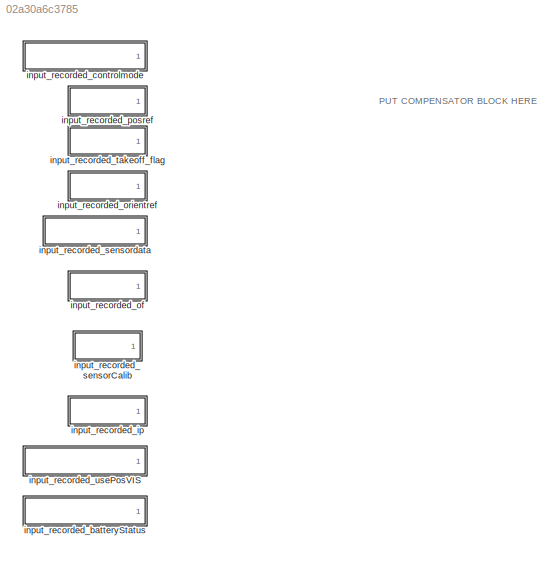
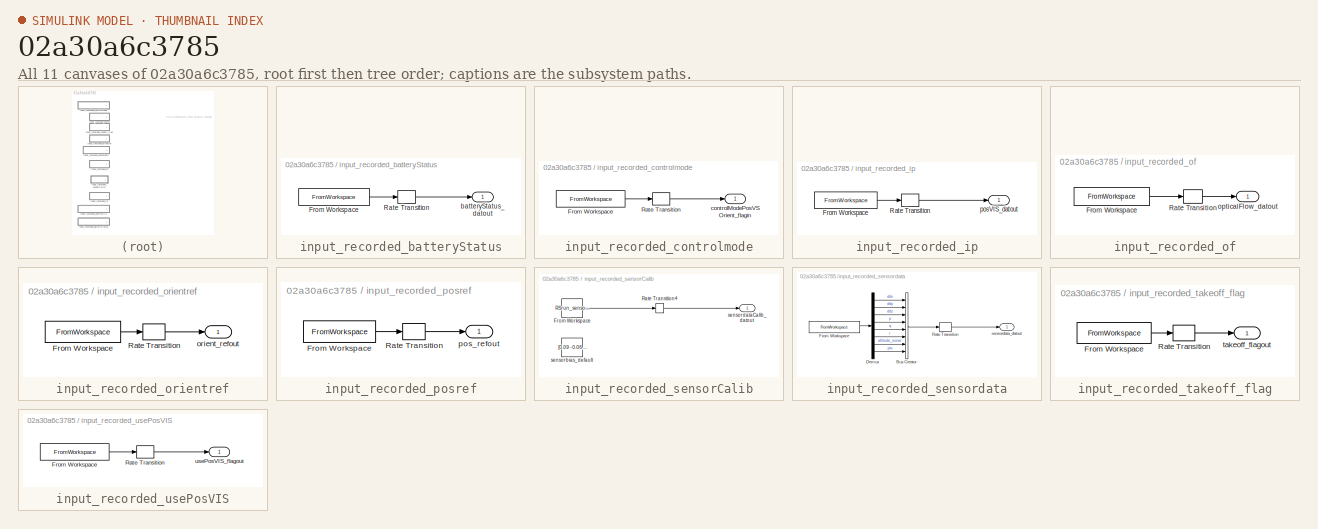
[diagram: thumbnail index - all 11 canvases of the model, root first then tree order]
MODEL slx_02a30a6c3785
KIND model
CONFIG AbsTol = auto
CONFIG FixedStep = 0.005
CONFIG InitFcn = % load parameters of the default quadrotor\ndisp('Quadrotor parameters loaded by InitFcn')\nparameters_estimationcontrol %load mdl_quadcopter as well!\n\n% change to Simulation folder if in data folder\ncd([matlabpath '/Simulation']);
CONFIG MaxStep = auto
CONFIG MinStep = auto
CONFIG RelTol = 1e-3
CONFIG SampleTimeConstraint = Unconstrained
CONFIG Solver = ode3
CONFIG SolverMode = Auto
CONFIG SolverName = ode3
CONFIG StartTime = 0.0
CONFIG StopTime = 15
BLOCK [SubSystem] input_recorded_batteryStatus
  Ports = [0, 1]
  RequestExecContextInheritance = off
BLOCK [FromWorkspace] input_recorded_batteryStatus/From Workspace
  SampleTime = quadEDT.sampletime
  VariableName = RSrun_usePosVIS
  ZeroCross = on
BLOCK [RateTransition] input_recorded_batteryStatus/Rate Transition
  OutPortSampleTime = quadEDT.sampletime
BLOCK [Outport] input_recorded_batteryStatus/batteryStatus_datout
  IconDisplay = Port number
BLOCK [SubSystem] input_recorded_controlmode
  Ports = [0, 1]
  RequestExecContextInheritance = off
BLOCK [FromWorkspace] input_recorded_controlmode/From Workspace
  SampleTime = quadEDT.sampletime
  VariableName = RSrun_controlMode
  ZeroCross = on
BLOCK [RateTransition] input_recorded_controlmode/Rate Transition
  OutPortSampleTime = quadEDT.sampletime
BLOCK [Outport] input_recorded_controlmode/controlModePosVSOrient_flagin
  IconDisplay = Port number
BLOCK [SubSystem] input_recorded_ip
  Ports = [0, 1]
  RequestExecContextInheritance = off
BLOCK [FromWorkspace] input_recorded_ip/From Workspace
  SampleTime = quadEDT.sampletime
  VariableName = RSrun_posVIS
  ZeroCross = on
BLOCK [RateTransition] input_recorded_ip/Rate Transition
  OutPortSampleTime = quadEDT.sampletime
BLOCK [Outport] input_recorded_ip/posVIS_datout
  IconDisplay = Port number
BLOCK [SubSystem] input_recorded_of
  Ports = [0, 1]
  RequestExecContextInheritance = off
BLOCK [FromWorkspace] input_recorded_of/From Workspace
  SampleTime = quadEDT.sampletime
  VariableName = RSrun_opticalFlow
  ZeroCross = on
BLOCK [RateTransition] input_recorded_of/Rate Transition
  OutPortSampleTime = quadEDT.sampletime
BLOCK [Outport] input_recorded_of/opticalFlow_datout
  IconDisplay = Port number
BLOCK [SubSystem] input_recorded_orientref
  Ports = [0, 1]
  RequestExecContextInheritance = off
BLOCK [FromWorkspace] input_recorded_orientref/From Workspace
  SampleTime = quadEDT.sampletime
  VariableName = RSrun_orient_ref
  ZeroCross = on
BLOCK [RateTransition] input_recorded_orientref/Rate Transition
  OutPortSampleTime = quadEDT.sampletime
BLOCK [Outport] input_recorded_orientref/orient_refout
  IconDisplay = Port number
BLOCK [SubSystem] input_recorded_posref
  Ports = [0, 1]
  RequestExecContextInheritance = off
BLOCK [FromWorkspace] input_recorded_posref/From Workspace
  SampleTime = quadEDT.sampletime
  VariableName = RSrun_pos_ref
  ZeroCross = on
BLOCK [RateTransition] input_recorded_posref/Rate Transition
  OutPortSampleTime = quadEDT.sampletime
BLOCK [Outport] input_recorded_posref/pos_refout
  IconDisplay = Port number
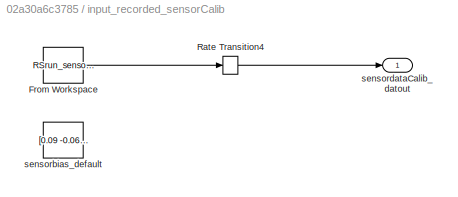
BLOCK [SubSystem] input_recorded_sensorCalib
  Ports = [0, 1]
  RequestExecContextInheritance = off
BLOCK [Constant] input_recorded_sensorCalib/From Workspace
  SampleTime = quadEDT.sampletime
  Value = RSrun_sensordataCalib
BLOCK [RateTransition] input_recorded_sensorCalib/Rate Transition4
  OutPortSampleTime = quadEDT.sampletime
BLOCK [Constant] input_recorded_sensorCalib/sensorbias_default
  SampleTime = quadEDT.sampletime
  Value = [0.09 -0.06 +0.337 -0.0095 -0.0075 0.0015 mean(rt_yout.signals(9).values(1:200))]
BLOCK [Outport] input_recorded_sensorCalib/sensordataCalib_datout
  IconDisplay = Port number
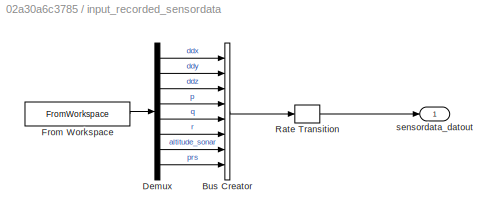
BLOCK [SubSystem] input_recorded_sensordata
  Ports = [0, 1]
  RequestExecContextInheritance = off
BLOCK [BusCreator] input_recorded_sensordata/Bus Creator
  DisplayOption = bar
  Inputs = 8
  Ports = [8, 1]
BLOCK [Demux] input_recorded_sensordata/Demux
  DisplayOption = bar
  Outputs = 8
  Ports = [1, 8]
BLOCK [FromWorkspace] input_recorded_sensordata/From Workspace
  SampleTime = quadEDT.sampletime
  VariableName = RSrun_sensordata
  ZeroCross = on
BLOCK [RateTransition] input_recorded_sensordata/Rate Transition
  OutPortSampleTime = quadEDT.sampletime
BLOCK [Outport] input_recorded_sensordata/sensordata_datout
  IconDisplay = Port number
BLOCK [SubSystem] input_recorded_takeoff_flag
  Ports = [0, 1]
  RequestExecContextInheritance = off
BLOCK [FromWorkspace] input_recorded_takeoff_flag/From Workspace
  SampleTime = quadEDT.sampletime
  VariableName = RSrun_takeoff_flag
  ZeroCross = on
BLOCK [RateTransition] input_recorded_takeoff_flag/Rate Transition
  OutPortSampleTime = quadEDT.sampletime
BLOCK [Outport] input_recorded_takeoff_flag/takeoff_flagout
  IconDisplay = Port number
BLOCK [SubSystem] input_recorded_usePosVIS
  Ports = [0, 1]
  RequestExecContextInheritance = off
BLOCK [FromWorkspace] input_recorded_usePosVIS/From Workspace
  SampleTime = quadEDT.sampletime
  VariableName = RSrun_usePosVIS
  ZeroCross = on
BLOCK [RateTransition] input_recorded_usePosVIS/Rate Transition
  OutPortSampleTime = quadEDT.sampletime
BLOCK [Outport] input_recorded_usePosVIS/usePosVIS_flagout
  IconDisplay = Port number
ANNOTATION (root): PUT COMPENSATOR BLOCK HERE
LINE input_recorded_batteryStatus/From Workspace:1 -> input_recorded_batteryStatus/Rate Transition:1
LINE input_recorded_batteryStatus/Rate Transition:1 -> input_recorded_batteryStatus/batteryStatus_datout:1
LINE input_recorded_controlmode/From Workspace:1 -> input_recorded_controlmode/Rate Transition:1
LINE input_recorded_controlmode/Rate Transition:1 -> input_recorded_controlmode/controlModePosVSOrient_flagin:1
LINE input_recorded_ip/From Workspace:1 -> input_recorded_ip/Rate Transition:1
LINE input_recorded_ip/Rate Transition:1 -> input_recorded_ip/posVIS_datout:1
LINE input_recorded_of/From Workspace:1 -> input_recorded_of/Rate Transition:1
LINE input_recorded_of/Rate Transition:1 -> input_recorded_of/opticalFlow_datout:1
LINE input_recorded_orientref/From Workspace:1 -> input_recorded_orientref/Rate Transition:1
LINE input_recorded_orientref/Rate Transition:1 -> input_recorded_orientref/orient_refout:1
LINE input_recorded_posref/From Workspace:1 -> input_recorded_posref/Rate Transition:1
LINE input_recorded_posref/Rate Transition:1 -> input_recorded_posref/pos_refout:1
LINE input_recorded_sensorCalib/From Workspace:1 -> input_recorded_sensorCalib/Rate Transition4:1
LINE input_recorded_sensorCalib/Rate Transition4:1 -> input_recorded_sensorCalib/sensordataCalib_datout:1
LINE input_recorded_sensordata/Bus Creator:1 -> input_recorded_sensordata/Rate Transition:1
LINE input_recorded_sensordata/Demux:1 -> input_recorded_sensordata/Bus Creator:1
LINE input_recorded_sensordata/Demux:2 -> input_recorded_sensordata/Bus Creator:2
LINE input_recorded_sensordata/Demux:3 -> input_recorded_sensordata/Bus Creator:3
LINE input_recorded_sensordata/Demux:4 -> input_recorded_sensordata/Bus Creator:4
LINE input_recorded_sensordata/Demux:5 -> input_recorded_sensordata/Bus Creator:5
LINE input_recorded_sensordata/Demux:6 -> input_recorded_sensordata/Bus Creator:6
LINE input_recorded_sensordata/Demux:7 -> input_recorded_sensordata/Bus Creator:7
LINE input_recorded_sensordata/Demux:8 -> input_recorded_sensordata/Bus Creator:8
LINE input_recorded_sensordata/From Workspace:1 -> input_recorded_sensordata/Demux:1
LINE input_recorded_sensordata/Rate Transition:1 -> input_recorded_sensordata/sensordata_datout:1
LINE input_recorded_takeoff_flag/From Workspace:1 -> input_recorded_takeoff_flag/Rate Transition:1
LINE input_recorded_takeoff_flag/Rate Transition:1 -> input_recorded_takeoff_flag/takeoff_flagout:1
LINE input_recorded_usePosVIS/From Workspace:1 -> input_recorded_usePosVIS/Rate Transition:1
LINE input_recorded_usePosVIS/Rate Transition:1 -> input_recorded_usePosVIS/usePosVIS_flagout:1
